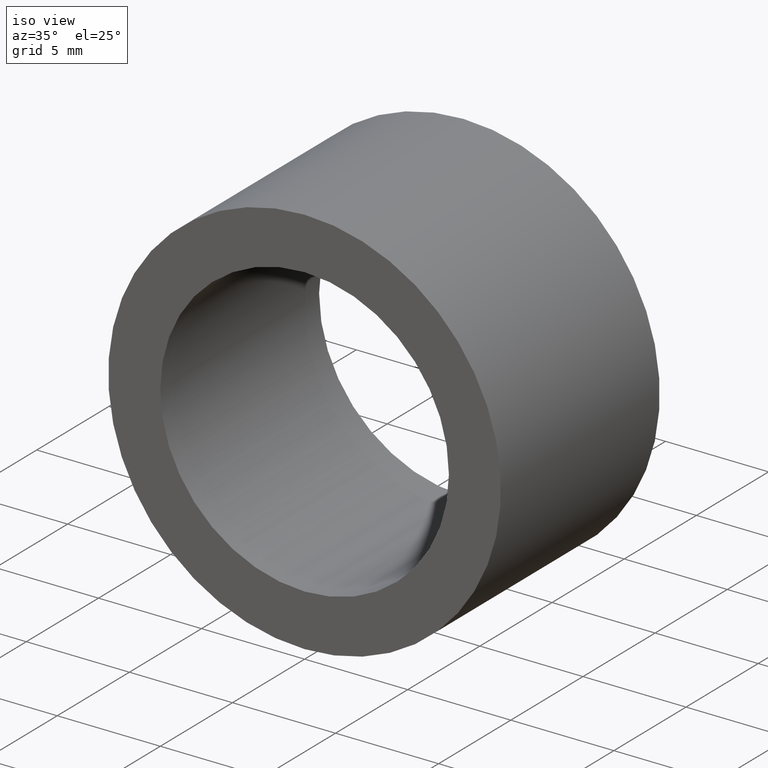
[diagram: clean part render]
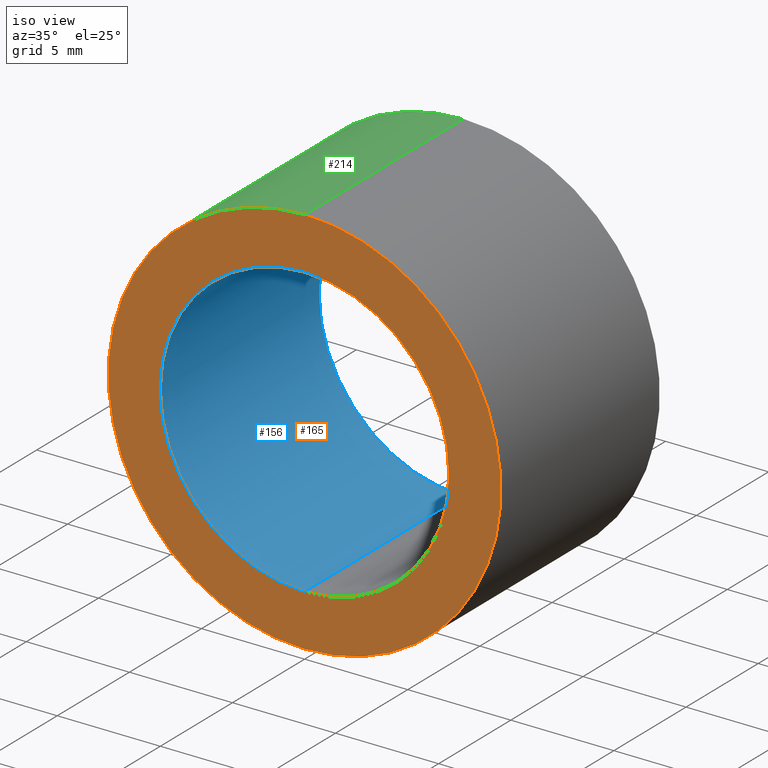
[diagram: same view with three faces highlighted in distinct colors, each labeled with its STEP entity id]
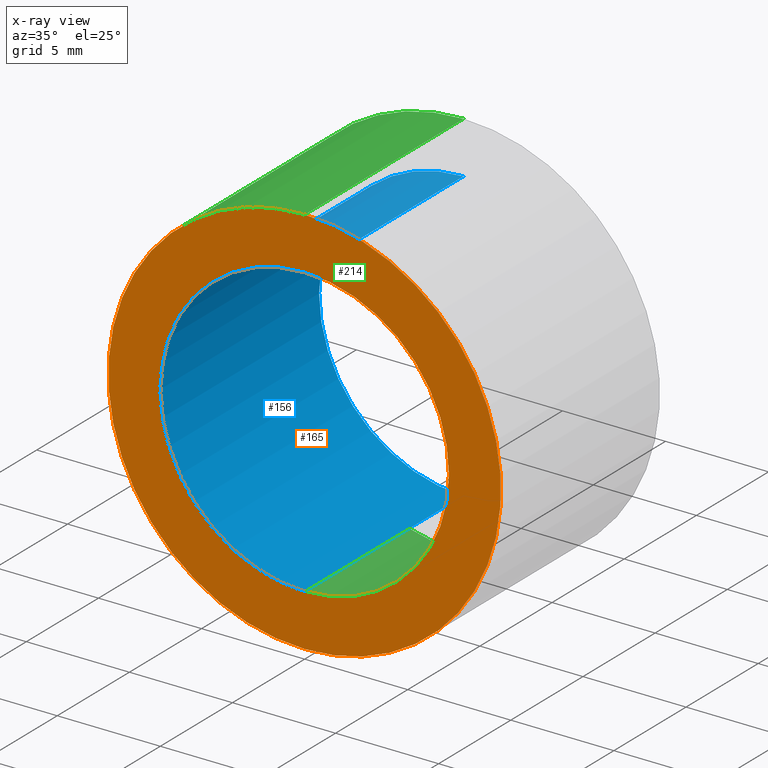
[diagram: x-ray of the same camera — body ghosted, the three highlighted faces saturated]
A machine part, iso view with three faces highlighted in distinct colors.
The next image is the same camera in x-ray (body ghosted, the three faces saturated) — at least one of them is partly hidden behind the body in this view.
Their STEP definitions:

[orange] entity #165 — the highlighted planar face has unit normal (0, 1, 0).
#6 = CARTESIAN_POINT ( 'NONE',  ( 1.166476076187854000E-015, 0.0000000000000000000, 9.525000000000000400 ) ) ;
#8 = FACE_OUTER_BOUND ( 'NONE', #48, .T. ) ;
#9 = CARTESIAN_POINT ( 'NONE',  ( 0.0000000000000000000, 0.0000000000000000000, -7.000000000000000000 ) ) ;
#11 = DIRECTION ( 'NONE',  ( 0.0000000000000000000, 0.0000000000000000000, 1.000000000000000000 ) ) ;
#15 = AXIS2_PLACEMENT_3D ( 'NONE', #73, #213, #218 ) ;
#16 = DIRECTION ( 'NONE',  ( 0.0000000000000000000, 0.0000000000000000000, 1.000000000000000000 ) ) ;
#30 = VERTEX_POINT ( 'NONE', #9 ) ;
#35 = CIRCLE ( 'NONE', #51, 9.525000000000000400 ) ;
#40 = DIRECTION ( 'NONE',  ( 0.0000000000000000000, 1.000000000000000000, 0.0000000000000000000 ) ) ;
#48 = EDGE_LOOP ( 'NONE', ( #169, #201 ) ) ;
#49 = VERTEX_POINT ( 'NONE', #6 ) ;
#51 = AXIS2_PLACEMENT_3D ( 'NONE', #148, #215, #226 ) ;
#63 = ORIENTED_EDGE ( 'NONE', *, *, #207, .T. ) ;
#64 = CIRCLE ( 'NONE', #199, 7.000000000000000000 ) ;
#71 = AXIS2_PLACEMENT_3D ( 'NONE', #72, #40, #125 ) ;
#72 = CARTESIAN_POINT ( 'NONE',  ( 0.0000000000000000000, 0.0000000000000000000, 0.0000000000000000000 ) ) ;
#73 = CARTESIAN_POINT ( 'NONE',  ( 0.0000000000000000000, 0.0000000000000000000, 0.0000000000000000000 ) ) ;
#82 = EDGE_CURVE ( 'NONE', #99, #30, #232, .T. ) ;
#99 = VERTEX_POINT ( 'NONE', #217 ) ;
#105 = AXIS2_PLACEMENT_3D ( 'NONE', #221, #219, #16 ) ;
#117 = EDGE_CURVE ( 'NONE', #149, #49, #35, .T. ) ;
#125 = DIRECTION ( 'NONE',  ( 0.0000000000000000000, -0.0000000000000000000, 1.000000000000000000 ) ) ;
#126 = EDGE_CURVE ( 'NONE', #49, #149, #161, .T. ) ;
#127 = ORIENTED_EDGE ( 'NONE', *, *, #82, .T. ) ;
#142 = FACE_BOUND ( 'NONE', #159, .T. ) ;
#148 = CARTESIAN_POINT ( 'NONE',  ( 0.0000000000000000000, 0.0000000000000000000, 0.0000000000000000000 ) ) ;
#149 = VERTEX_POINT ( 'NONE', #210 ) ;
#153 = PLANE ( 'NONE',  #71 ) ;
#159 = EDGE_LOOP ( 'NONE', ( #63, #127 ) ) ;
#161 = CIRCLE ( 'NONE', #105, 9.525000000000000400 ) ;
#165 = ADVANCED_FACE ( 'NONE', ( #8, #142 ), #153, .F. ) ;
#169 = ORIENTED_EDGE ( 'NONE', *, *, #117, .F. ) ;
#199 = AXIS2_PLACEMENT_3D ( 'NONE', #209, #230, #11 ) ;
#201 = ORIENTED_EDGE ( 'NONE', *, *, #126, .F. ) ;
#207 = EDGE_CURVE ( 'NONE', #30, #99, #64, .T. ) ;
#209 = CARTESIAN_POINT ( 'NONE',  ( 0.0000000000000000000, 0.0000000000000000000, 0.0000000000000000000 ) ) ;
#210 = CARTESIAN_POINT ( 'NONE',  ( 0.0000000000000000000, 0.0000000000000000000, -9.525000000000000400 ) ) ;
#213 = DIRECTION ( 'NONE',  ( 0.0000000000000000000, 1.000000000000000000, 0.0000000000000000000 ) ) ;
#215 = DIRECTION ( 'NONE',  ( 0.0000000000000000000, 1.000000000000000000, 0.0000000000000000000 ) ) ;
#217 = CARTESIAN_POINT ( 'NONE',  ( 8.572527594031473200E-016, 0.0000000000000000000, 7.000000000000000000 ) ) ;
#218 = DIRECTION ( 'NONE',  ( 0.0000000000000000000, 0.0000000000000000000, 1.000000000000000000 ) ) ;
#219 = DIRECTION ( 'NONE',  ( 0.0000000000000000000, 1.000000000000000000, 0.0000000000000000000 ) ) ;
#221 = CARTESIAN_POINT ( 'NONE',  ( 0.0000000000000000000, 0.0000000000000000000, 0.0000000000000000000 ) ) ;
#226 = DIRECTION ( 'NONE',  ( 0.0000000000000000000, 0.0000000000000000000, 1.000000000000000000 ) ) ;
#230 = DIRECTION ( 'NONE',  ( 0.0000000000000000000, 1.000000000000000000, 0.0000000000000000000 ) ) ;
#232 = CIRCLE ( 'NONE', #15, 7.000000000000000000 ) ;

[blue] entity #156 — the highlighted cylindrical surface (partial cylindrical patch) has radius 7 mm, axis along (-0, -1, -0).
#9 = CARTESIAN_POINT ( 'NONE',  ( 0.0000000000000000000, 0.0000000000000000000, -7.000000000000000000 ) ) ;
#10 = DIRECTION ( 'NONE',  ( 0.0000000000000000000, 1.000000000000000000, 0.0000000000000000000 ) ) ;
#11 = DIRECTION ( 'NONE',  ( 0.0000000000000000000, 0.0000000000000000000, 1.000000000000000000 ) ) ;
#23 = ORIENTED_EDGE ( 'NONE', *, *, #174, .T. ) ;
#24 = CYLINDRICAL_SURFACE ( 'NONE', #47, 7.000000000000000000 ) ;
#28 = DIRECTION ( 'NONE',  ( -0.0000000000000000000, -1.000000000000000000, -0.0000000000000000000 ) ) ;
#30 = VERTEX_POINT ( 'NONE', #9 ) ;
#31 = FACE_OUTER_BOUND ( 'NONE', #195, .T. ) ;
#36 = DIRECTION ( 'NONE',  ( 0.0000000000000000000, 0.0000000000000000000, -1.000000000000000000 ) ) ;
#41 = EDGE_CURVE ( 'NONE', #178, #30, #121, .T. ) ;
#47 = AXIS2_PLACEMENT_3D ( 'NONE', #96, #61, #36 ) ;
#52 = ORIENTED_EDGE ( 'NONE', *, *, #207, .F. ) ;
#61 = DIRECTION ( 'NONE',  ( -0.0000000000000000000, -1.000000000000000000, -0.0000000000000000000 ) ) ;
#64 = CIRCLE ( 'NONE', #199, 7.000000000000000000 ) ;
#76 = CARTESIAN_POINT ( 'NONE',  ( 0.0000000000000000000, 11.00000000000000000, -7.000000000000000000 ) ) ;
#84 = CARTESIAN_POINT ( 'NONE',  ( 8.572527594031473200E-016, 11.00000000000000000, 7.000000000000000000 ) ) ;
#93 = DIRECTION ( 'NONE',  ( -0.0000000000000000000, -1.000000000000000000, -0.0000000000000000000 ) ) ;
#96 = CARTESIAN_POINT ( 'NONE',  ( 0.0000000000000000000, 11.00000000000000000, 0.0000000000000000000 ) ) ;
#99 = VERTEX_POINT ( 'NONE', #217 ) ;
#107 = VERTEX_POINT ( 'NONE', #237 ) ;
#121 = LINE ( 'NONE', #76, #220 ) ;
#124 = LINE ( 'NONE', #84, #154 ) ;
#143 = AXIS2_PLACEMENT_3D ( 'NONE', #151, #10, #192 ) ;
#145 = ORIENTED_EDGE ( 'NONE', *, *, #212, .T. ) ;
#151 = CARTESIAN_POINT ( 'NONE',  ( 0.0000000000000000000, 11.00000000000000000, 0.0000000000000000000 ) ) ;
#154 = VECTOR ( 'NONE', #93, 1000.000000000000000 ) ;
#156 = ADVANCED_FACE ( 'NONE', ( #31 ), #24, .F. ) ;
#174 = EDGE_CURVE ( 'NONE', #178, #107, #211, .T. ) ;
#178 = VERTEX_POINT ( 'NONE', #202 ) ;
#188 = ORIENTED_EDGE ( 'NONE', *, *, #41, .F. ) ;
#192 = DIRECTION ( 'NONE',  ( 0.0000000000000000000, 0.0000000000000000000, 1.000000000000000000 ) ) ;
#195 = EDGE_LOOP ( 'NONE', ( #23, #145, #52, #188 ) ) ;
#199 = AXIS2_PLACEMENT_3D ( 'NONE', #209, #230, #11 ) ;
#202 = CARTESIAN_POINT ( 'NONE',  ( 0.0000000000000000000, 11.00000000000000000, -7.000000000000000000 ) ) ;
#207 = EDGE_CURVE ( 'NONE', #30, #99, #64, .T. ) ;
#209 = CARTESIAN_POINT ( 'NONE',  ( 0.0000000000000000000, 0.0000000000000000000, 0.0000000000000000000 ) ) ;
#211 = CIRCLE ( 'NONE', #143, 7.000000000000000000 ) ;
#212 = EDGE_CURVE ( 'NONE', #107, #99, #124, .T. ) ;
#217 = CARTESIAN_POINT ( 'NONE',  ( 8.572527594031473200E-016, 0.0000000000000000000, 7.000000000000000000 ) ) ;
#220 = VECTOR ( 'NONE', #28, 1000.000000000000000 ) ;
#230 = DIRECTION ( 'NONE',  ( 0.0000000000000000000, 1.000000000000000000, 0.0000000000000000000 ) ) ;
#237 = CARTESIAN_POINT ( 'NONE',  ( 8.572527594031473200E-016, 11.00000000000000000, 7.000000000000000000 ) ) ;

[green] entity #214 — the highlighted cylindrical surface (partial cylindrical patch) has radius 9.525 mm, axis along (-0, -1, -0).
#6 = CARTESIAN_POINT ( 'NONE',  ( 1.166476076187854000E-015, 0.0000000000000000000, 9.525000000000000400 ) ) ;
#14 = CARTESIAN_POINT ( 'NONE',  ( 0.0000000000000000000, 11.00000000000000000, -9.525000000000000400 ) ) ;
#21 = DIRECTION ( 'NONE',  ( -0.0000000000000000000, -1.000000000000000000, -0.0000000000000000000 ) ) ;
#29 = CARTESIAN_POINT ( 'NONE',  ( 0.0000000000000000000, 11.00000000000000000, 0.0000000000000000000 ) ) ;
#33 = AXIS2_PLACEMENT_3D ( 'NONE', #160, #42, #68 ) ;
#35 = CIRCLE ( 'NONE', #51, 9.525000000000000400 ) ;
#38 = EDGE_CURVE ( 'NONE', #244, #132, #187, .T. ) ;
#42 = DIRECTION ( 'NONE',  ( -0.0000000000000000000, -1.000000000000000000, -0.0000000000000000000 ) ) ;
#44 = DIRECTION ( 'NONE',  ( -0.0000000000000000000, -1.000000000000000000, -0.0000000000000000000 ) ) ;
#45 = EDGE_CURVE ( 'NONE', #132, #49, #120, .T. ) ;
#49 = VERTEX_POINT ( 'NONE', #6 ) ;
#50 = LINE ( 'NONE', #175, #53 ) ;
#51 = AXIS2_PLACEMENT_3D ( 'NONE', #148, #215, #226 ) ;
#53 = VECTOR ( 'NONE', #44, 1000.000000000000000 ) ;
#68 = DIRECTION ( 'NONE',  ( 0.0000000000000000000, 0.0000000000000000000, -1.000000000000000000 ) ) ;
#85 = CYLINDRICAL_SURFACE ( 'NONE', #33, 9.525000000000000400 ) ;
#95 = ORIENTED_EDGE ( 'NONE', *, *, #117, .T. ) ;
#114 = AXIS2_PLACEMENT_3D ( 'NONE', #29, #241, #147 ) ;
#115 = ORIENTED_EDGE ( 'NONE', *, *, #45, .F. ) ;
#117 = EDGE_CURVE ( 'NONE', #149, #49, #35, .T. ) ;
#120 = LINE ( 'NONE', #185, #150 ) ;
#128 = ORIENTED_EDGE ( 'NONE', *, *, #231, .T. ) ;
#132 = VERTEX_POINT ( 'NONE', #198 ) ;
#147 = DIRECTION ( 'NONE',  ( 0.0000000000000000000, 0.0000000000000000000, 1.000000000000000000 ) ) ;
#148 = CARTESIAN_POINT ( 'NONE',  ( 0.0000000000000000000, 0.0000000000000000000, 0.0000000000000000000 ) ) ;
#149 = VERTEX_POINT ( 'NONE', #210 ) ;
#150 = VECTOR ( 'NONE', #21, 1000.000000000000000 ) ;
#160 = CARTESIAN_POINT ( 'NONE',  ( 0.0000000000000000000, 11.00000000000000000, 0.0000000000000000000 ) ) ;
#167 = FACE_OUTER_BOUND ( 'NONE', #172, .T. ) ;
#172 = EDGE_LOOP ( 'NONE', ( #115, #243, #128, #95 ) ) ;
#175 = CARTESIAN_POINT ( 'NONE',  ( 0.0000000000000000000, 11.00000000000000000, -9.525000000000000400 ) ) ;
#185 = CARTESIAN_POINT ( 'NONE',  ( 1.166476076187854000E-015, 11.00000000000000000, 9.525000000000000400 ) ) ;
#187 = CIRCLE ( 'NONE', #114, 9.525000000000000400 ) ;
#198 = CARTESIAN_POINT ( 'NONE',  ( 1.166476076187854000E-015, 11.00000000000000000, 9.525000000000000400 ) ) ;
#210 = CARTESIAN_POINT ( 'NONE',  ( 0.0000000000000000000, 0.0000000000000000000, -9.525000000000000400 ) ) ;
#214 = ADVANCED_FACE ( 'NONE', ( #167 ), #85, .T. ) ;
#215 = DIRECTION ( 'NONE',  ( 0.0000000000000000000, 1.000000000000000000, 0.0000000000000000000 ) ) ;
#226 = DIRECTION ( 'NONE',  ( 0.0000000000000000000, 0.0000000000000000000, 1.000000000000000000 ) ) ;
#231 = EDGE_CURVE ( 'NONE', #244, #149, #50, .T. ) ;
#241 = DIRECTION ( 'NONE',  ( 0.0000000000000000000, 1.000000000000000000, 0.0000000000000000000 ) ) ;
#243 = ORIENTED_EDGE ( 'NONE', *, *, #38, .F. ) ;
#244 = VERTEX_POINT ( 'NONE', #14 ) ;